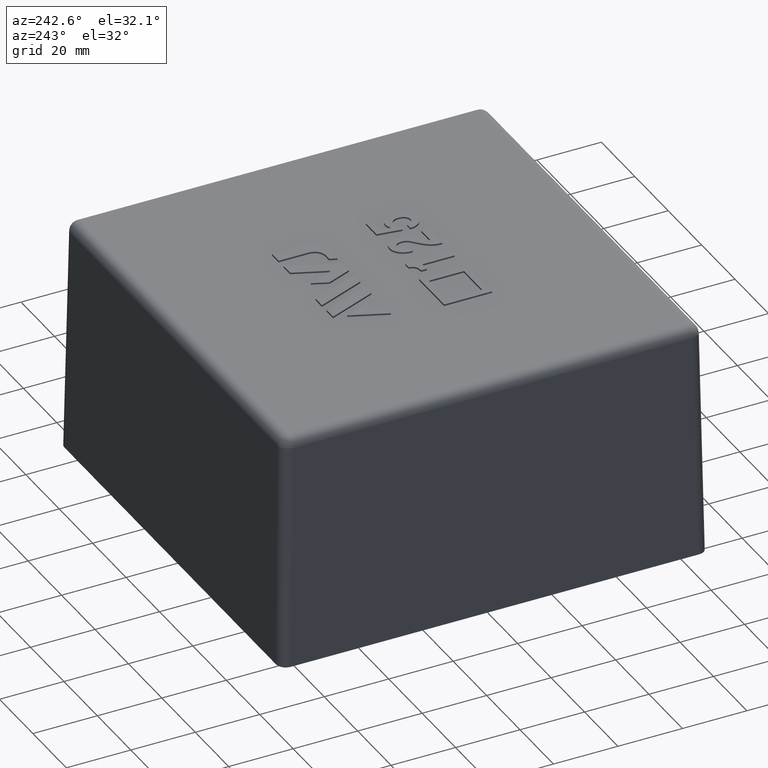
[diagram: clean part render]
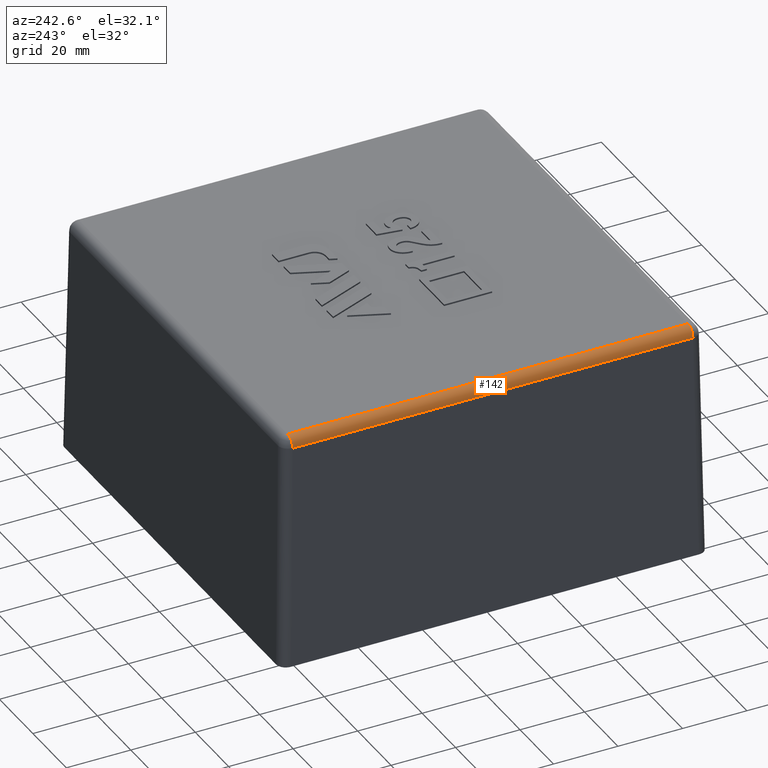
[diagram: same view with one face highlighted and labeled with its STEP entity id]
A machine part, auxiliary view. The second image highlights one B-rep face of the part: STEP entity #142.
In plain terms, the highlighted cylindrical surface (edge-blend (fillet) strip) has radius 3 mm, axis along (0, 1, 0).
Its self-contained STEP definition (entity closure, byte-faithful):
#142 = ADVANCED_FACE( '', ( #312 ), #313, .T. );
#312 = FACE_OUTER_BOUND( '', #511, .T. );
#313 = CYLINDRICAL_SURFACE( '', #512, 3.00000000000000 );
#511 = EDGE_LOOP( '', ( #1128, #1129, #1130, #1131 ) );
#512 = AXIS2_PLACEMENT_3D( '', #1132, #1133, #1134 );
#1128 = ORIENTED_EDGE( '', *, *, #1521, .T. );
#1129 = ORIENTED_EDGE( '', *, *, #1379, .F. );
#1130 = ORIENTED_EDGE( '', *, *, #1518, .F. );
#1131 = ORIENTED_EDGE( '', *, *, #1398, .F. );
#1132 = CARTESIAN_POINT( '', ( -62.0776884708930, -66.3000000000000, 70.0000000000000 ) );
#1133 = DIRECTION( '', ( 0.000000000000000, 1.00000000000000, 0.000000000000000 ) );
#1134 = DIRECTION( '', ( 0.000000000000000, 0.000000000000000, -1.00000000000000 ) );
#1379 = EDGE_CURVE( '', #1644, #1639, #1646, .F. );
#1398 = EDGE_CURVE( '', #1682, #1684, #1685, .F. );
#1518 = EDGE_CURVE( '', #1684, #1644, #1867, .T. );
#1521 = EDGE_CURVE( '', #1682, #1639, #1871, .T. );
#1639 = VERTEX_POINT( '', #2076 );
#1644 = VERTEX_POINT( '', #2083 );
#1646 = LINE( '', #2086, #2087 );
#1682 = VERTEX_POINT( '', #2179 );
#1684 = VERTEX_POINT( '', #2182 );
#1685 = LINE( '', #2183, #2184 );
#1867 = CIRCLE( '', #2537, 3.00000000000000 );
#1871 = CIRCLE( '', #2541, 3.00000000000000 );
#2076 = CARTESIAN_POINT( '', ( -62.0776884708930, -62.0776884708930, 73.0000000000000 ) );
#2083 = CARTESIAN_POINT( '', ( -62.0776884708930, 62.0776884708930, 73.0000000000000 ) );
#2086 = CARTESIAN_POINT( '', ( -62.0776884708930, -62.0262371747709, 73.0000000000000 ) );
#2087 = VECTOR( '', #2691, 1000.00000000000 );
#2179 = CARTESIAN_POINT( '', ( -65.0772315563622, -62.0776884708930, 70.0523572193118 ) );
#2182 = CARTESIAN_POINT( '', ( -65.0772315563622, 62.0776884708930, 70.0523572193119 ) );
#2183 = CARTESIAN_POINT( '', ( -65.0772315563622, 62.0262371747709, 70.0523572193118 ) );
#2184 = VECTOR( '', #2693, 1000.00000000000 );
#2537 = AXIS2_PLACEMENT_3D( '', #2801, #2802, #2803 );
#2541 = AXIS2_PLACEMENT_3D( '', #2810, #2811, #2812 );
#2691 = DIRECTION( '', ( 0.000000000000000, 1.00000000000000, 0.000000000000000 ) );
#2693 = DIRECTION( '', ( 0.000000000000000, -1.00000000000000, 0.000000000000000 ) );
#2801 = CARTESIAN_POINT( '', ( -62.0776884708930, 62.0776884708930, 70.0000000000000 ) );
#2802 = DIRECTION( '', ( 0.000000000000000, 1.00000000000000, 0.000000000000000 ) );
#2803 = DIRECTION( '', ( 0.000000000000000, 0.000000000000000, 1.00000000000000 ) );
#2810 = CARTESIAN_POINT( '', ( -62.0776884708930, -62.0776884708930, 70.0000000000000 ) );
#2811 = DIRECTION( '', ( 0.000000000000000, 1.00000000000000, 0.000000000000000 ) );
#2812 = DIRECTION( '', ( 0.000000000000000, 0.000000000000000, 1.00000000000000 ) );